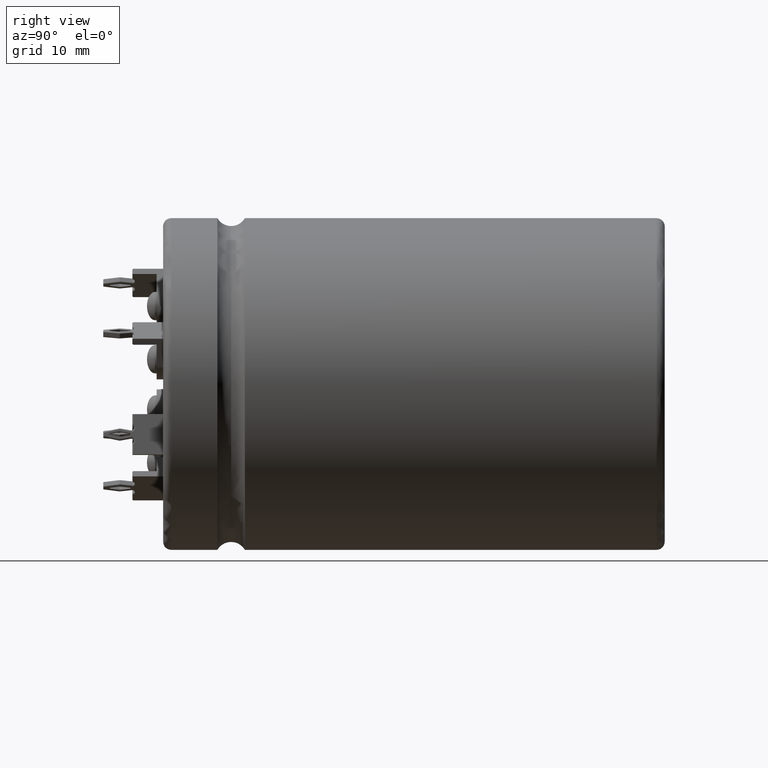
[diagram: clean part render]
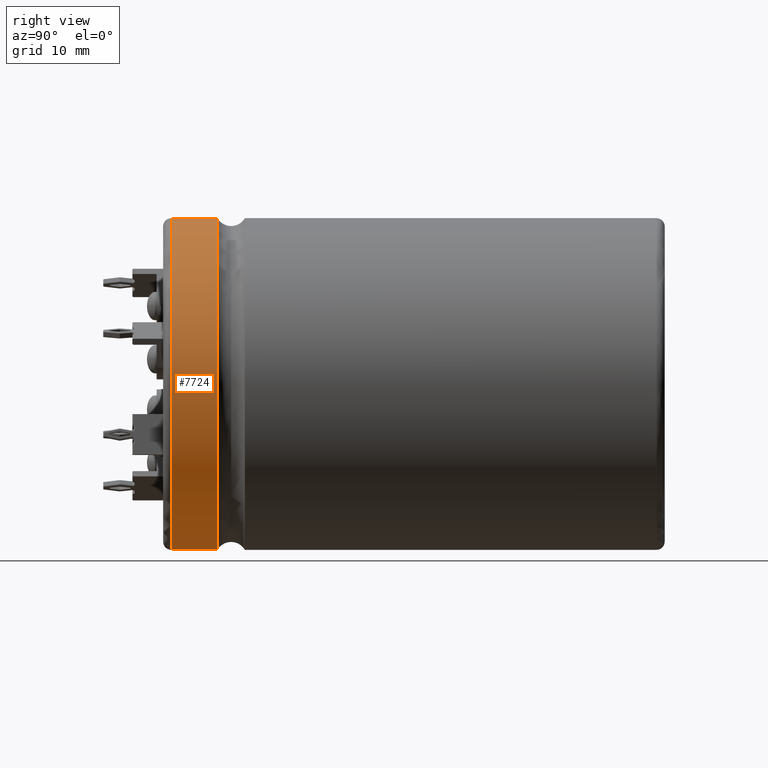
[diagram: same view with one face highlighted and labeled with its STEP entity id]
A machine part, right view. The second image highlights one B-rep face of the part: STEP entity #7724.
In plain terms, the highlighted cylindrical surface (partial cylindrical patch) has radius 20.5 mm, axis along (-0, -1, -0).
Its self-contained STEP definition (entity closure, byte-faithful):
#52 = CYLINDRICAL_SURFACE ( 'NONE', #16846, 20.50000000000000000 ) ;
#1315 = DIRECTION ( 'NONE',  ( -0.0000000000000000000, -1.000000000000000000, -0.0000000000000000000 ) ) ;
#1581 = VERTEX_POINT ( 'NONE', #9240 ) ;
#2477 = ORIENTED_EDGE ( 'NONE', *, *, #11293, .F. ) ;
#3139 = FACE_OUTER_BOUND ( 'NONE', #6852, .T. ) ;
#3251 = DIRECTION ( 'NONE',  ( 0.0000000000000000000, 0.0000000000000000000, -1.000000000000000000 ) ) ;
#3468 = AXIS2_PLACEMENT_3D ( 'NONE', #5425, #1315, #10728 ) ;
#4157 = VECTOR ( 'NONE', #6278, 1000.000000000000000 ) ;
#4553 = VERTEX_POINT ( 'NONE', #9339 ) ;
#4650 = DIRECTION ( 'NONE',  ( 0.0000000000000000000, 1.000000000000000000, 0.0000000000000000000 ) ) ;
#5425 = CARTESIAN_POINT ( 'NONE',  ( 0.0000000000000000000, 6.702200000000027900, 0.0000000000000000000 ) ) ;
#5622 = VERTEX_POINT ( 'NONE', #7171 ) ;
#6278 = DIRECTION ( 'NONE',  ( -0.0000000000000000000, -1.000000000000000000, -0.0000000000000000000 ) ) ;
#6852 = EDGE_LOOP ( 'NONE', ( #8603, #14479, #15300, #2477 ) ) ;
#7171 = CARTESIAN_POINT ( 'NONE',  ( 0.0000000000000000000, 1.000000000000000900, -20.50000000000000000 ) ) ;
#7548 = VERTEX_POINT ( 'NONE', #16205 ) ;
#7724 = ADVANCED_FACE ( 'NONE', ( #3139 ), #52, .T. ) ;
#7884 = CIRCLE ( 'NONE', #15750, 20.50000000000000000 ) ;
#8350 = LINE ( 'NONE', #11050, #10435 ) ;
#8568 = CARTESIAN_POINT ( 'NONE',  ( 2.510525938252074500E-015, 62.00000000000000000, 20.50000000000000000 ) ) ;
#8603 = ORIENTED_EDGE ( 'NONE', *, *, #9431, .T. ) ;
#9240 = CARTESIAN_POINT ( 'NONE',  ( 0.0000000000000000000, 6.702200000000027900, -20.49999999999999600 ) ) ;
#9339 = CARTESIAN_POINT ( 'NONE',  ( 2.510525938252074500E-015, 6.702200000000027900, 20.49999999999999600 ) ) ;
#9431 = EDGE_CURVE ( 'NONE', #1581, #4553, #12631, .T. ) ;
#10435 = VECTOR ( 'NONE', #16543, 1000.000000000000000 ) ;
#10728 = DIRECTION ( 'NONE',  ( 0.0000000000000000000, 0.0000000000000000000, -1.000000000000000000 ) ) ;
#11050 = CARTESIAN_POINT ( 'NONE',  ( 0.0000000000000000000, 62.00000000000000000, -20.50000000000000000 ) ) ;
#11293 = EDGE_CURVE ( 'NONE', #1581, #5622, #8350, .T. ) ;
#11402 = EDGE_CURVE ( 'NONE', #4553, #7548, #12932, .T. ) ;
#11460 = DIRECTION ( 'NONE',  ( 0.0000000000000000000, 0.0000000000000000000, 1.000000000000000000 ) ) ;
#12631 = CIRCLE ( 'NONE', #3468, 20.49999999999999600 ) ;
#12723 = CARTESIAN_POINT ( 'NONE',  ( 0.0000000000000000000, 62.00000000000000000, 0.0000000000000000000 ) ) ;
#12821 = CARTESIAN_POINT ( 'NONE',  ( 0.0000000000000000000, 1.000000000000000900, 0.0000000000000000000 ) ) ;
#12932 = LINE ( 'NONE', #8568, #4157 ) ;
#14479 = ORIENTED_EDGE ( 'NONE', *, *, #11402, .T. ) ;
#14541 = EDGE_CURVE ( 'NONE', #7548, #5622, #7884, .T. ) ;
#15300 = ORIENTED_EDGE ( 'NONE', *, *, #14541, .T. ) ;
#15436 = DIRECTION ( 'NONE',  ( -0.0000000000000000000, -1.000000000000000000, -0.0000000000000000000 ) ) ;
#15750 = AXIS2_PLACEMENT_3D ( 'NONE', #12821, #4650, #11460 ) ;
#16205 = CARTESIAN_POINT ( 'NONE',  ( 2.510525938252074500E-015, 1.000000000000000900, 20.50000000000000000 ) ) ;
#16543 = DIRECTION ( 'NONE',  ( -0.0000000000000000000, -1.000000000000000000, -0.0000000000000000000 ) ) ;
#16846 = AXIS2_PLACEMENT_3D ( 'NONE', #12723, #15436, #3251 ) ;